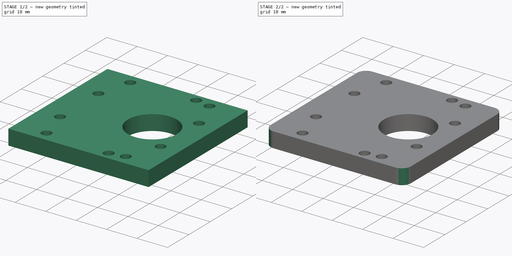
[diagram: build sequence overview — one tinted view per stage of 2, left to right]
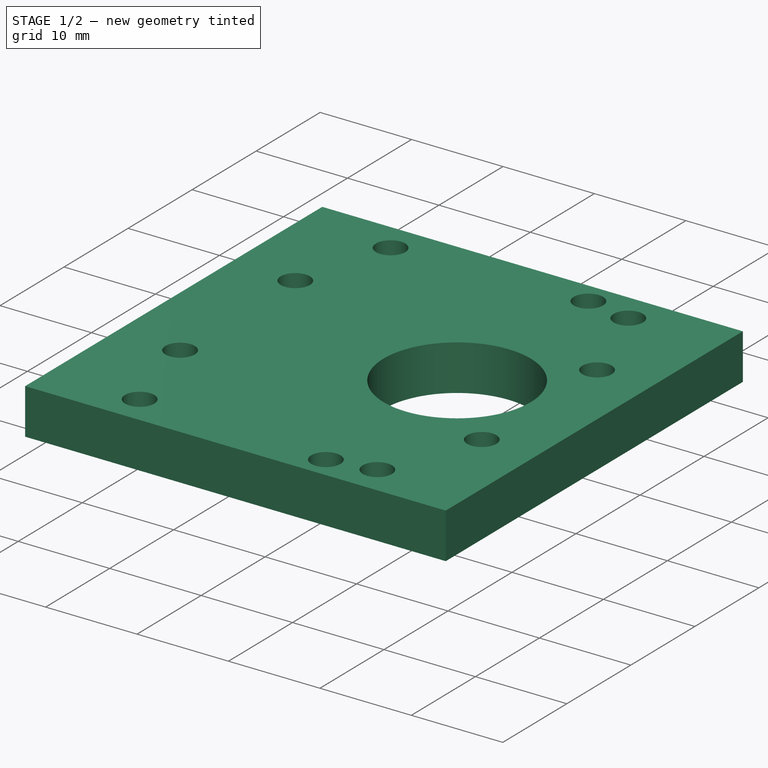
[diagram: stage 1 of 2 — iso view after this stage's code; geometry added in this stage tinted green]
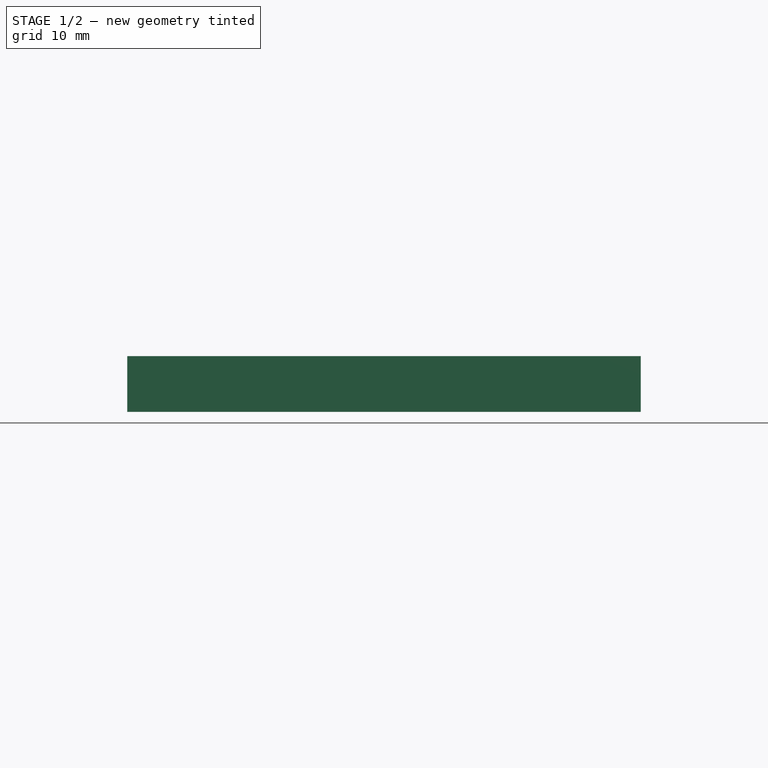
[diagram: stage 1 of 2 — front view after this stage's code; geometry added in this stage tinted green]
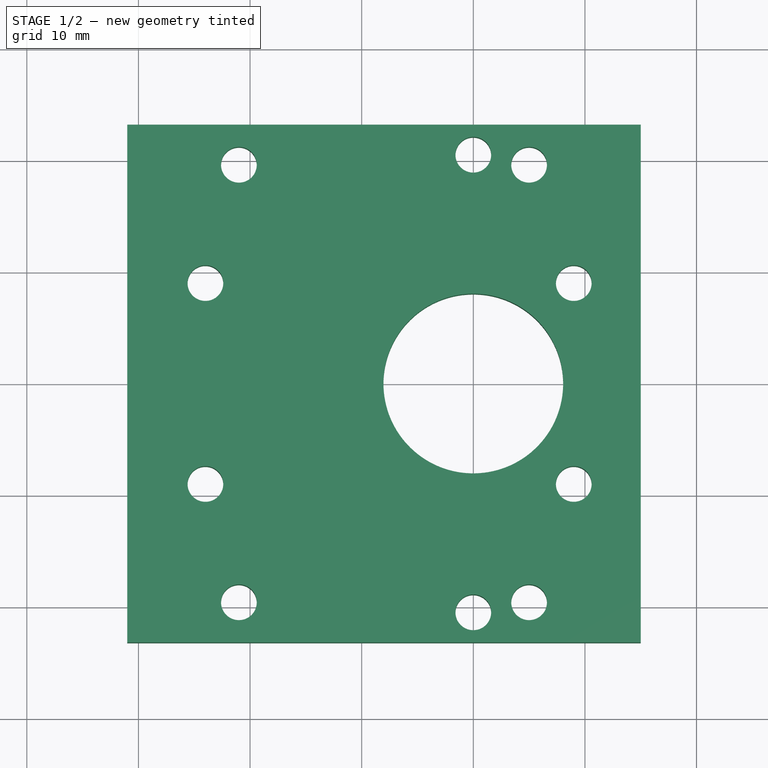
[diagram: stage 1 of 2 — top view after this stage's code; geometry added in this stage tinted green]
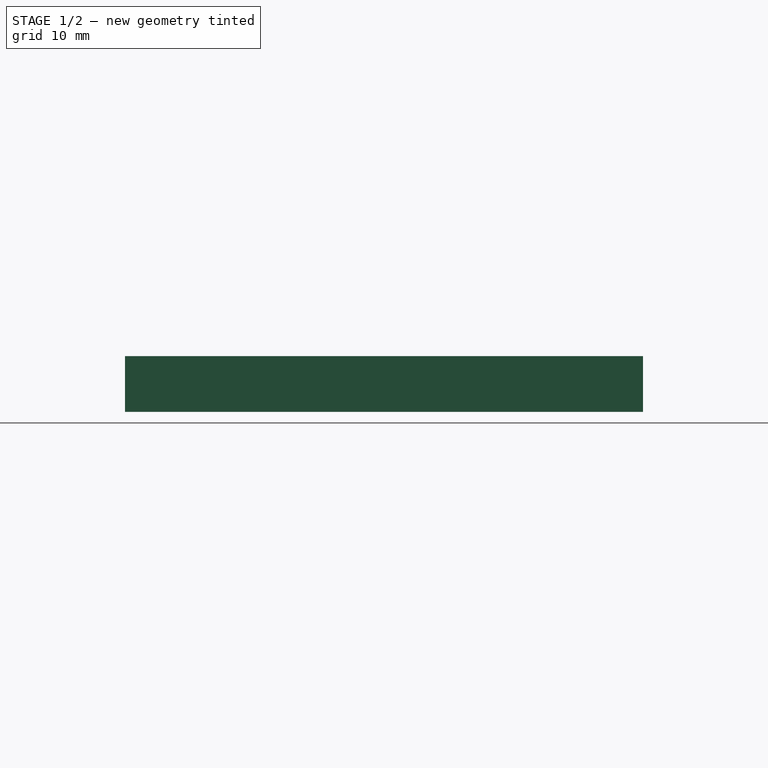
[diagram: stage 1 of 2 — right view after this stage's code; geometry added in this stage tinted green]
FCSTD DOCUMENT  (FreeCAD 0.20R29603 (Git))
Label: mancal-laterais (cópia)
License: All rights reserved
LicenseURL: http://en.wikipedia.org/wiki/All_rights_reserved
objects: Sketcher::SketchObject×1, PartDesign::Pad×1, PartDesign::Fillet×1, PartDesign::Body×1
note: 6 computed .brp shape members not serialized (recipe doc carries the construction recipe); baked Part::Feature solids carry a one-line shape summary decoded from their .brp

FEATURE [Sketcher::SketchObject] Sketch
  FullyConstrained = true
  MapMode = 5
  Support = -> [XY_Plane]
  sketch-geometry (44):
    g0: Circle CenterX=0 CenterY=0 CenterZ=0 NormalX=0 NormalY=0 NormalZ=1 AngleXU=0 Radius=8.05
    g1: Circle CenterX=0 CenterY=0 CenterZ=0 NormalX=0 NormalY=0 NormalZ=1 AngleXU=0 Radius=16
    g2: LineSegment StartX=-31 StartY=16 StartZ=0 EndX=15 EndY=16 EndZ=0
    g3: LineSegment StartX=15 StartY=16 StartZ=0 EndX=15 EndY=-16 EndZ=0
    g4: LineSegment StartX=15 StartY=-16 StartZ=0 EndX=-31 EndY=-16 EndZ=0
    g5: LineSegment StartX=-31 StartY=-16 StartZ=0 EndX=-31 EndY=16 EndZ=0
    g6: Circle CenterX=-24 CenterY=9 CenterZ=0 NormalX=0 NormalY=0 NormalZ=1 AngleXU=0 Radius=1.6
    g7: Circle CenterX=-24 CenterY=-9 CenterZ=0 NormalX=0 NormalY=0 NormalZ=1 AngleXU=0 Radius=1.6
    g8: Circle CenterX=9 CenterY=-9 CenterZ=0 NormalX=0 NormalY=0 NormalZ=1 AngleXU=0 Radius=1.6
    g9: Circle CenterX=9 CenterY=9 CenterZ=0 NormalX=0 NormalY=0 NormalZ=1 AngleXU=0 Radius=1.6
    g10: LineSegment StartX=-24 StartY=9 StartZ=0 EndX=9 EndY=9 EndZ=0
    g11: LineSegment StartX=9 StartY=9 StartZ=0 EndX=9 EndY=-9 EndZ=0
    g12: LineSegment StartX=9 StartY=-9 StartZ=0 EndX=-24 EndY=-9 EndZ=0
    g13: LineSegment StartX=-24 StartY=-9 StartZ=0 EndX=-24 EndY=9 EndZ=0
    g14: LineSegment StartX=0 StartY=9 StartZ=0 EndX=0 EndY=0 EndZ=0
    g15: LineSegment StartX=0 StartY=-9 StartZ=0 EndX=0 EndY=0 EndZ=0
    g16: LineSegment StartX=-31 StartY=16 StartZ=0 EndX=-4.5 EndY=16 EndZ=0
    g17: LineSegment StartX=15 StartY=16 StartZ=0 EndX=4.5 EndY=16 EndZ=0
    g18: LineSegment StartX=-31 StartY=-16 StartZ=0 EndX=-4.5 EndY=-16 EndZ=0
    g19: LineSegment StartX=15 StartY=-16 StartZ=0 EndX=4.5 EndY=-16 EndZ=0
    g20: Circle CenterX=0 CenterY=20.5 CenterZ=0 NormalX=0 NormalY=0 NormalZ=1 AngleXU=0 Radius=1.6
    g21: Circle CenterX=0 CenterY=-20.5 CenterZ=0 NormalX=0 NormalY=0 NormalZ=1 AngleXU=0 Radius=1.6
    g22: Circle CenterX=0 CenterY=20.5 CenterZ=0 NormalX=0 NormalY=0 NormalZ=1 AngleXU=0 Radius=4.5
    g23: Circle CenterX=0 CenterY=-20.5 CenterZ=0 NormalX=0 NormalY=0 NormalZ=1 AngleXU=0 Radius=4.5
    g24: LineSegment StartX=-4.5 StartY=16 StartZ=0 EndX=-4.5 EndY=20.5 EndZ=0
    g25: LineSegment StartX=4.5 StartY=16 StartZ=0 EndX=4.5 EndY=20.5 EndZ=0
    g26: LineSegment StartX=-4.5 StartY=-16 StartZ=0 EndX=-4.5 EndY=-20.5 EndZ=0
    g27: LineSegment StartX=4.5 StartY=-16 StartZ=0 EndX=4.5 EndY=-20.5 EndZ=0
    g28: ArcOfCircle CenterX=0 CenterY=20.5 CenterZ=0 NormalX=0 NormalY=0 NormalZ=1 AngleXU=0 Radius=4.5 StartAngle=0 EndAngle=3.14159
    g29: ArcOfCircle CenterX=0 CenterY=-20.5 CenterZ=0 NormalX=0 NormalY=0 NormalZ=1 AngleXU=0 Radius=4.5 StartAngle=3.14159 EndAngle=6.28319
    g30: LineSegment StartX=-31 StartY=16 StartZ=0 EndX=-31 EndY=23.2 EndZ=0
    g31: LineSegment StartX=-31 StartY=23.2 StartZ=0 EndX=15 EndY=23.2 EndZ=0
    g32: LineSegment StartX=15 StartY=23.2 StartZ=0 EndX=15 EndY=16 EndZ=0
    g33: LineSegment StartX=-31 StartY=-16 StartZ=0 EndX=-31 EndY=-23.2 EndZ=0
    g34: LineSegment StartX=-31 StartY=-23.2 StartZ=0 EndX=15 EndY=-23.2 EndZ=0
    g35: LineSegment StartX=15 StartY=-23.2 StartZ=0 EndX=15 EndY=-16 EndZ=0
    g36: Circle CenterX=-21 CenterY=19.6 CenterZ=0 NormalX=0 NormalY=0 NormalZ=1 AngleXU=0 Radius=1.6
    g37: Circle CenterX=5 CenterY=19.6 CenterZ=0 NormalX=0 NormalY=0 NormalZ=1 AngleXU=0 Radius=1.6
    g38: Circle CenterX=-21 CenterY=-19.6 CenterZ=0 NormalX=0 NormalY=0 NormalZ=1 AngleXU=0 Radius=1.6
    g39: Circle CenterX=5 CenterY=-19.6 CenterZ=0 NormalX=0 NormalY=0 NormalZ=1 AngleXU=0 Radius=1.6
    g40: LineSegment StartX=-31 StartY=23.2 StartZ=0 EndX=-31 EndY=19.6 EndZ=0
    g41: LineSegment StartX=-31 StartY=19.6 StartZ=0 EndX=-31 EndY=16 EndZ=0
    g42: LineSegment StartX=-31 StartY=-16 StartZ=0 EndX=-31 EndY=-19.6 EndZ=0
    g43: LineSegment StartX=-31 StartY=-19.6 StartZ=0 EndX=-31 EndY=-23.2 EndZ=0
  constraints (117):
    c: Coincident(g0,g-1)
    c: Coincident(g2,g3)
    c: Coincident(g3,g4)
    c: Coincident(g4,g5)
    c: Coincident(g5,g2)
    c: Horizontal(g2)
    c: Horizontal(g4)
    c: Vertical(g3)
    c: Vertical(g5)
    c: Tangent(g2,g1)
    c: Tangent(g4,g1)
    c: Coincident(g1,g0)
    c: Diameter(g0) = 16.1
    c: DistanceY(g3,g3) = 32
    c: DistanceX(g4,g4) = 46
    c: Coincident(g10,g11)
    c: Coincident(g11,g12)
    c: Coincident(g12,g13)
    c: Coincident(g13,g10)
    c: Horizontal(g10)
    c: Horizontal(g12)
    c: Vertical(g11)
    c: Vertical(g13)
    c: Coincident(g10,g6)
    c: Coincident(g12,g7)
    c: Coincident(g11,g8)
    c: Coincident(g10,g9)
    c: DistanceY(g13,g13) = 18
    c: DistanceX(g12,g12) = 33
    c: Equal(g8,g9)
    c: Equal(g9,g6)
    c: Equal(g6,g7)
    c: Radius(g6) = 1.6
    c: DistanceX(g9,g2) = 6
    c: Coincident(g14,g15)
    c: Coincident(g14,g0)
    c: PointOnObject(g15,g-2)
    c: PointOnObject(g15,g12)
    c: PointOnObject(g14,g10)
    c: PointOnObject(g14,g-2)
    c: Equal(g14,g15)
    c: DistanceX(g0,g9) = 9
    c: Horizontal(g16)
    c: Horizontal(g17)
    c: Horizontal(g19)
    c: Horizontal(g18)
    c: Coincident(g18,g5)
    c: Coincident(g16,g5)
    c: Coincident(g19,g3)
    c: Coincident(g17,g3)
    c: PointOnObject(g20,g-2)
    c: PointOnObject(g21,g-2)
    c: Equal(g20,g21)
    c: Equal(g21,g7)
    c: Equal(g17,g19)
    c: Coincident(g22,g20)
    c: Coincident(g23,g21)
    c: Tangent(g23,g4)
    c: Tangent(g22,g2)
    c: Equal(g22,g23)
    c: Coincident(g24,g16)
    c: Vertical(g24)
    c: Coincident(g25,g17)
    c: Vertical(g25)
    c: Coincident(g26,g18)
    c: Vertical(g26)
    c: Coincident(g27,g19)
    c: Vertical(g27)
    c: Equal(g27,g26)
    c: Equal(g26,g24)
    c: Equal(g24,g25)
    c: Coincident(g20,g28)
    c: Coincident(g28,g25)
    c: Tangent(g28,g24) = 1.5708
    c: Diameter(g22) = 9
    c: Equal(g22,g28)
    c: Coincident(g29,g21)
    c: Coincident(g29,g26)
    c: Coincident(g29,g27)
    c: Coincident(g5,g30)
    c: Vertical(g30)
    c: Coincident(g30,g31)
    c: Horizontal(g31)
    c: Coincident(g31,g32)
    c: Vertical(g32)
    c: Coincident(g32,g3)
    c: DistanceY(g30,g30) = 7.2
    c: Coincident(g5,g33)
    c: Vertical(g33)
    c: Coincident(g34,g33)
    c: Horizontal(g34)
    c: Coincident(g35,g34)
    c: Coincident(g35,g3)
    c: Vertical(g35)
    c: Equal(g33,g30)
    c: Horizontal(g38,g39)
    c: Horizontal(g36,g37)
    c: Vertical(g38,g36)
    c: Vertical(g39,g37)
    c: Equal(g39,g37)
    c: Equal(g37,g36)
    c: Equal(g36,g38)
    c: Coincident(g40,g30)
    c: Coincident(g41,g40)
    c: Coincident(g41,g5)
    c: Equal(g40,g41)
    c: Horizontal(g36,g40)
    c: PointOnObject(g40,g30)
    c: Coincident(g42,g5)
    c: Coincident(g43,g42)
    c: Coincident(g43,g33)
    c: Equal(g43,g42)
    c: Horizontal(g38,g42)
    c: Equal(g38,g7)
    c: PointOnObject(g42,g33)
    c: DistanceX(g42,g38) = 10
    c: DistanceX(g36,g37) = 26
FEATURE [PartDesign::Pad] Pad
  Direction = (0,0,1)
  Length = 5
  Length2 = 10
  Profile = -> Sketch
  ReferenceAxis = -> Sketch [N_Axis]
  Type = 0
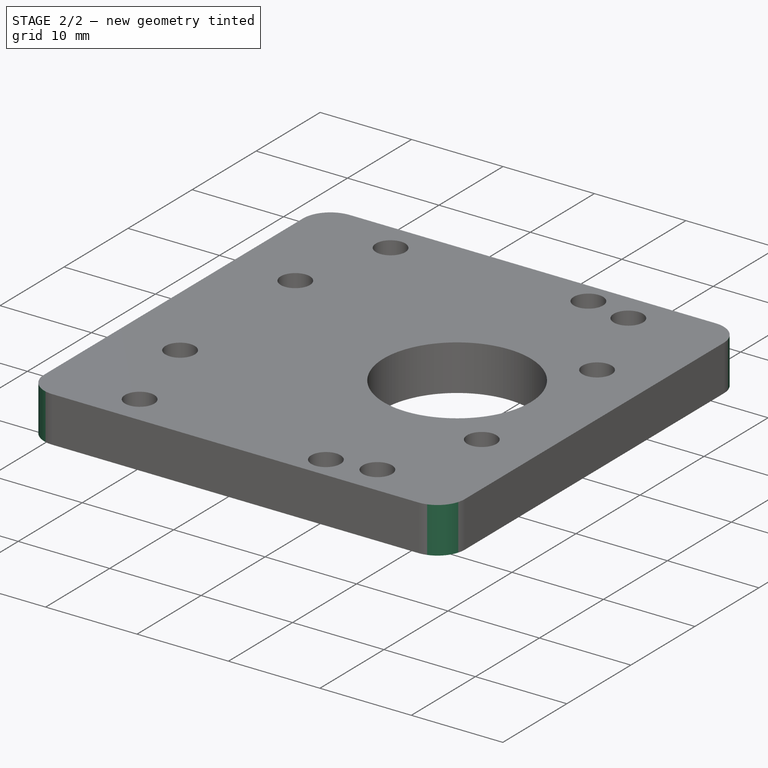
[diagram: stage 2 of 2 — iso view after this stage's code; geometry added in this stage tinted green]
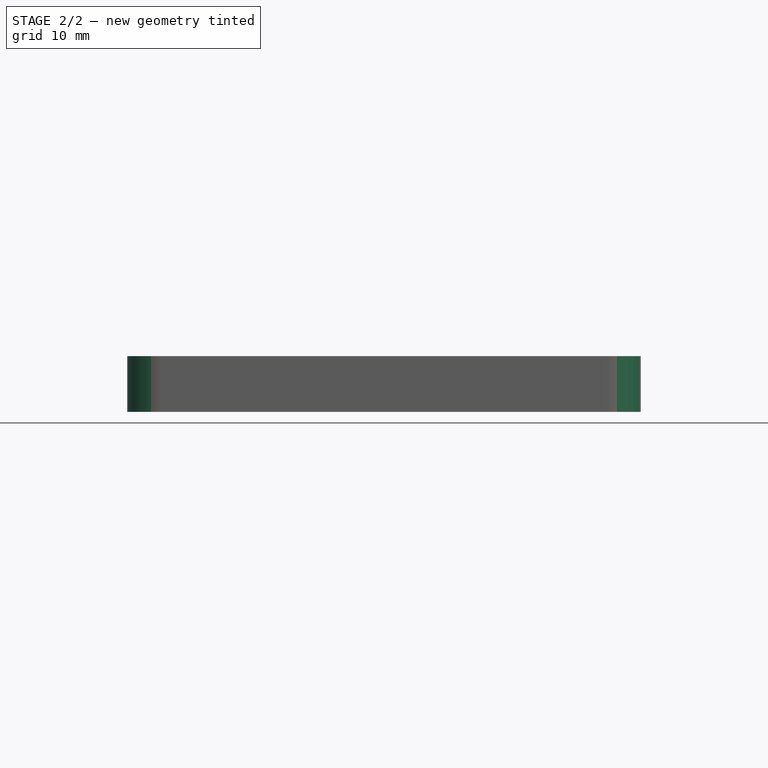
[diagram: stage 2 of 2 — front view after this stage's code; geometry added in this stage tinted green]
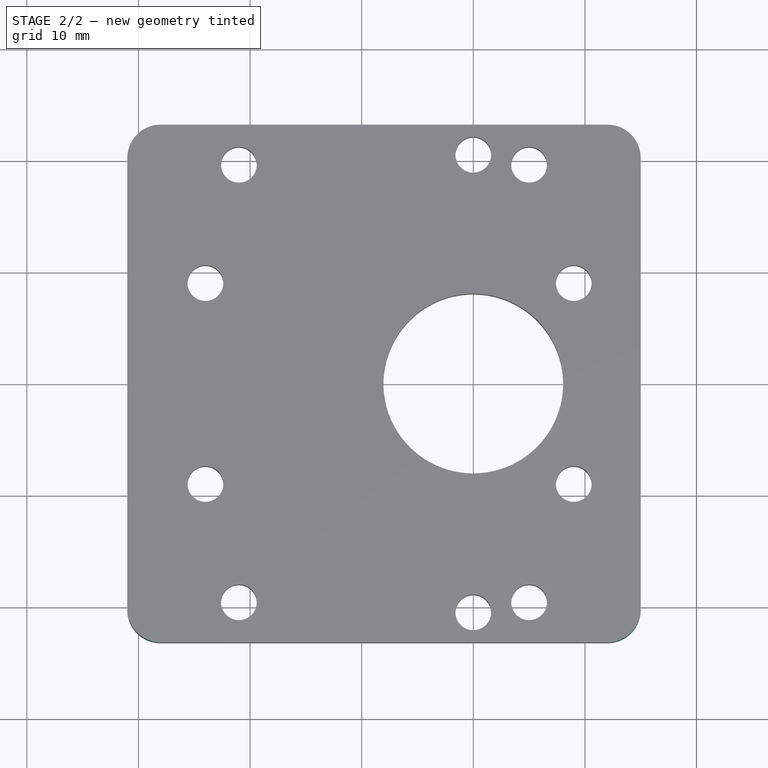
[diagram: stage 2 of 2 — top view after this stage's code; geometry added in this stage tinted green]
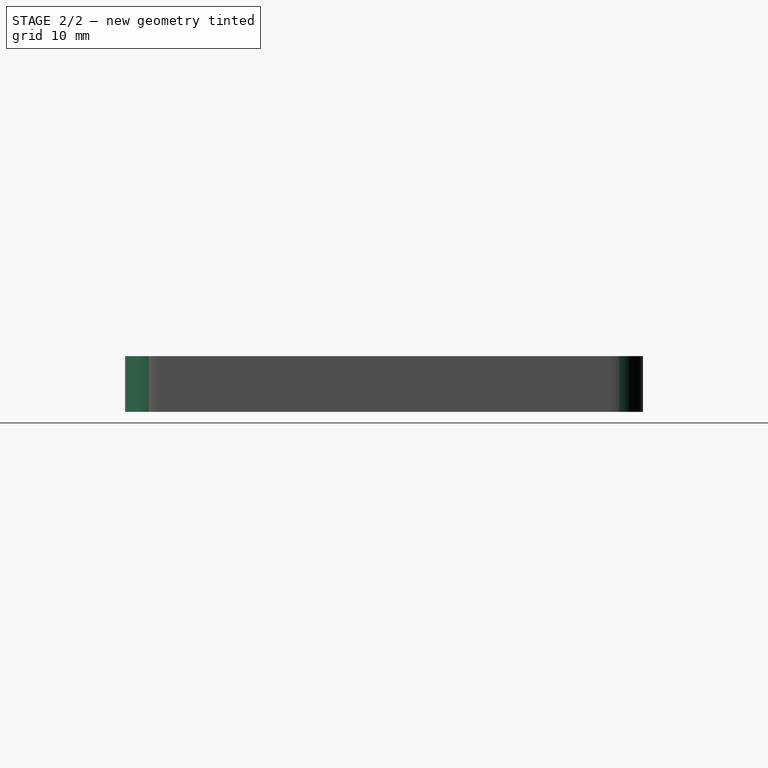
[diagram: stage 2 of 2 — right view after this stage's code; geometry added in this stage tinted green]
FEATURE [PartDesign::Fillet] Fillet
  Base = -> Pad [Edge20,Edge5,Edge8,Edge17]
  BaseFeature = -> Pad
  Radius = 3
  SupportTransform = false
  UseAllEdges = false
FEATURE [PartDesign::Body] Body
  Group = -> [Sketch,Pad,Fillet]
  Origin = -> Origin
  Tip = -> Fillet
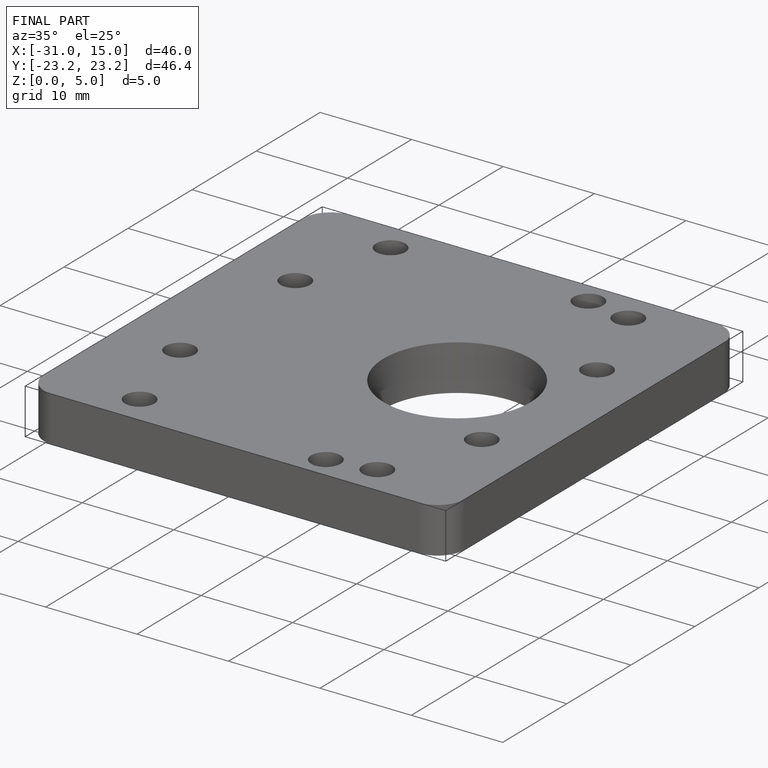
[diagram: finished part — iso view with bounding-box wireframe]
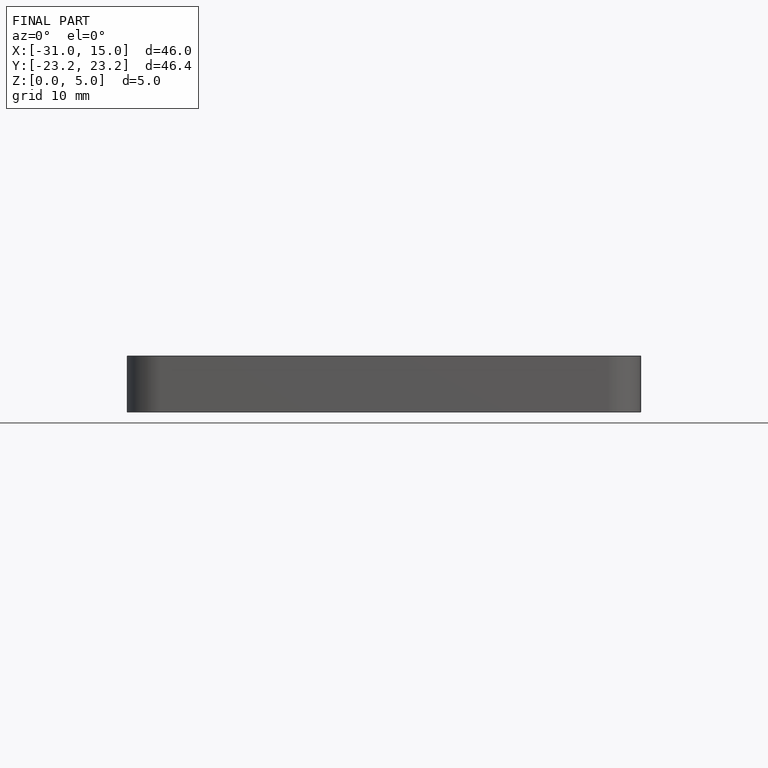
[diagram: finished part — front view with bounding-box wireframe]
